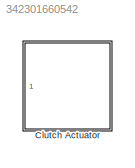
MODEL slx_342301660542
KIND library
CONFIG AbsTol = 1e-3
CONFIG EnableMultiTasking = on
CONFIG FixedStep = auto
CONFIG MaxStep = auto
CONFIG MinStep = auto
CONFIG RelTol = 1e-3
CONFIG SampleTimeConstraint = Unconstrained
CONFIG SolverName = ode23t
CONFIG StartTime = 0.0
CONFIG StopTime = 10.0
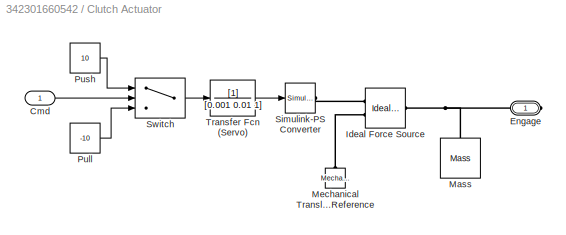
BLOCK [SubSystem] Clutch Actuator
  Ports = [1, 0, 0, 0, 0, 0, 1]
  RequestExecContextInheritance = off
BLOCK [Inport] Clutch Actuator/Cmd
BLOCK [PMIOPort] Clutch Actuator/Engage
  Side = Right
BLOCK [Reference] Clutch Actuator/Ideal Force Source  REF=fl_lib/Mechanical/Mechanical Sources/Ideal Force Source
  Ports = [0, 0, 0, 0, 0, 1, 2]
  SourceBlock = fl_lib/Mechanical/Mechanical Sources/Ideal Force Source
  SourceProductBaseCode = SS
  SourceType = Ideal Force Source
BLOCK [Reference] Clutch Actuator/Mass  REF=fl_lib/Mechanical/Translational
Elements/Mass
  NameLocation = right
  Ports = [0, 0, 0, 0, 0, 1]
  SourceBlock = fl_lib/Mechanical/Translational\nElements/Mass
  SourceProductBaseCode = SS
  SourceType = Mass
BLOCK [Reference] Clutch Actuator/Mechanical Translational Reference  REF=fl_lib/Mechanical/Translational
Elements/Mechanical
Translational
Reference
  NameLocation = right
  Ports = [0, 0, 0, 0, 0, 1]
  SourceBlock = fl_lib/Mechanical/Translational\nElements/Mechanical\nTranslational\nReference
  SourceProductBaseCode = SS
  SourceType = Mechanical\nTranslational\nReference
BLOCK [Constant] Clutch Actuator/Pull
  Value = -10
BLOCK [Constant] Clutch Actuator/Push
  Value = 10
BLOCK [Reference] Clutch Actuator/Simulink-PS Converter  REF=nesl_utility/Simulink-PS
Converter
  Ports = [1, 0, 0, 0, 0, 0, 1]
  SourceBlock = nesl_utility/Simulink-PS\nConverter
  SourceProductBaseCode = SS
  SourceType = Simulink-PS\nConverter
BLOCK [Switch] Clutch Actuator/Switch
  Criteria = u2 ~= 0
  InputSameDT = off
  SaturateOnIntegerOverflow = off
BLOCK [TransferFcn] Clutch Actuator/Transfer Fcn (Servo)
  Denominator = [0.001 0.01 1]
LINE Clutch Actuator/Cmd:1 -> Clutch Actuator/Switch:2
LINE Clutch Actuator/Pull:1 -> Clutch Actuator/Switch:3
LINE Clutch Actuator/Push:1 -> Clutch Actuator/Switch:1
LINE Clutch Actuator/Switch:1 -> Clutch Actuator/Transfer Fcn (Servo):1
LINE Clutch Actuator/Transfer Fcn (Servo):1 -> Clutch Actuator/Simulink-PS Converter:1
PNET net1: Clutch Actuator/Engage:RConn1 -- Clutch Actuator/Ideal Force Source:LConn1 -- Clutch Actuator/Mass:LConn1
PLINE Clutch Actuator/Ideal Force Source:RConn1 -- Clutch Actuator/Simulink-PS Converter:RConn1
PLINE Clutch Actuator/Ideal Force Source:RConn2 -- Clutch Actuator/Mechanical Translational Reference:LConn1
note: PNET lines group multi-terminal physical nets as a canonical sorted terminal list (undirected conserving connections); 2-terminal nets keep the pairwise PLINE form
